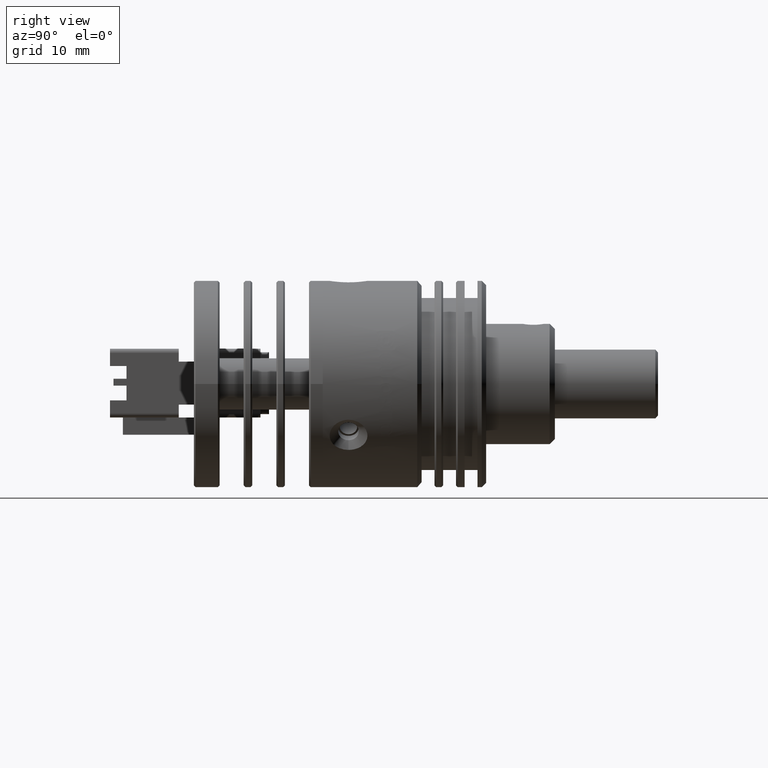
[diagram: clean part render]
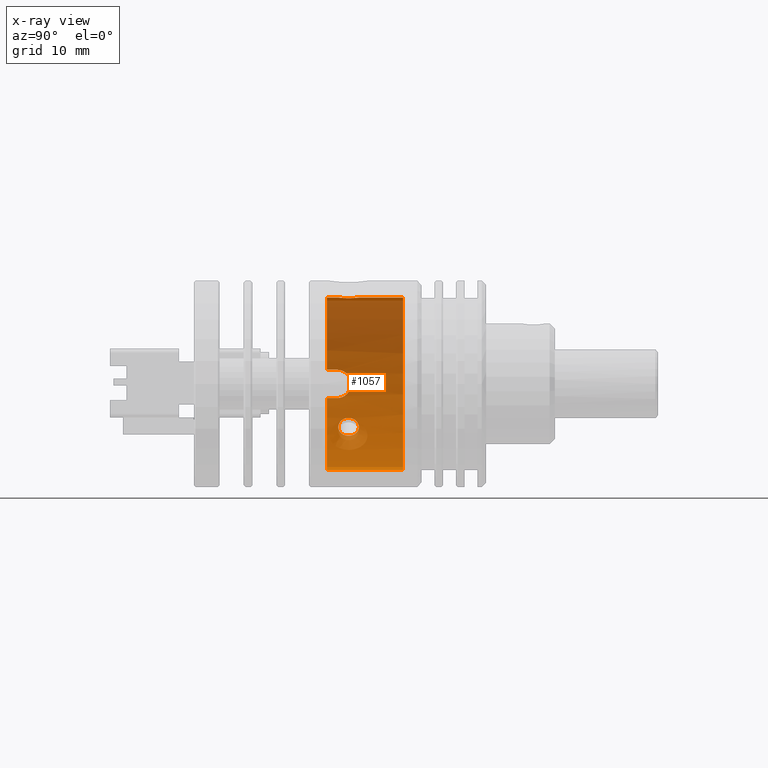
[diagram: x-ray — body ghosted, one internal face saturated and labeled with its STEP entity id]
A machine part, right view, then the same camera in x-ray: the body is ghosted and one INTERNAL B-rep face — a face not visible from any outside direction — is saturated and labeled: STEP entity #1057.
In plain terms, the highlighted cylindrical surface (partial cylindrical patch) has radius 10.05 mm, axis along (0, -1, 0).
Its self-contained STEP definition (entity closure, byte-faithful):
#458 = VERTEX_POINT ( 'NONE', #3569 ) ;
#525 = EDGE_CURVE ( 'NONE', #6832, #10182, #19097, .T. ) ;
#759 = CARTESIAN_POINT ( 'NONE',  ( -7.425286783052531092, -12.74281690102306364, -10.18517869290876199 ) ) ;
#890 = CARTESIAN_POINT ( 'NONE',  ( -6.605182745571224423, -12.10854479214479262, -13.26447686491780331 ) ) ;
#962 = VECTOR ( 'NONE', #18757, 1000.000000000000000 ) ;
#979 = CARTESIAN_POINT ( 'NONE',  ( -6.281811990332984763, -11.54559233490889980, -13.92610660918422383 ) ) ;
#1051 = CARTESIAN_POINT ( 'NONE',  ( -5.466398390838159926, -12.87431296392269786, -15.20225927523784293 ) ) ;
#1057 = ADVANCED_FACE ( 'NONE', ( #11739, #2728 ), #17819, .F. ) ;
#1170 = ORIENTED_EDGE ( 'NONE', *, *, #15794, .T. ) ;
#1308 = VERTEX_POINT ( 'NONE', #17994 ) ;
#2116 = CARTESIAN_POINT ( 'NONE',  ( 2.574933787635819815, -15.21493551001259803, -19.22403592165940012 ) ) ;
#2157 = CARTESIAN_POINT ( 'NONE',  ( 1.527976326826113729, -12.10724065561822904, 0.8214716023639646592 ) ) ;
#2176 = CARTESIAN_POINT ( 'NONE',  ( -5.969653563077124581, -11.54518954507262762, -14.46687969582933064 ) ) ;
#2182 = EDGE_CURVE ( 'NONE', #7286, #8348, #13064, .T. ) ;
#2235 = CARTESIAN_POINT ( 'NONE',  ( -5.557550248511866187, -13.32132622789586307, -15.07902957748575545 ) ) ;
#2299 = AXIS2_PLACEMENT_3D ( 'NONE', #2732, #11466, #14832 ) ;
#2336 = CARTESIAN_POINT ( 'NONE',  ( -6.666326740466710810, -12.87448124840656583, -13.12392248420391994 ) ) ;
#2416 = CARTESIAN_POINT ( 'NONE',  ( -7.466416769260704633, -12.46855052240196393, -8.743637897217418242 ) ) ;
#2425 = VERTEX_POINT ( 'NONE', #8534 ) ;
#2429 = CARTESIAN_POINT ( 'NONE',  ( -6.416513509468365406, -13.76310347751115870, -13.66603366377109374 ) ) ;
#2522 = CARTESIAN_POINT ( 'NONE',  ( -7.461396969375037713, -12.49981399956362971, -8.640687843899096166 ) ) ;
#2629 = CARTESIAN_POINT ( 'NONE',  ( -5.608889589834159750, -13.45115871491164938, -15.00843738706238284 ) ) ;
#2728 = FACE_OUTER_BOUND ( 'NONE', #8671, .T. ) ;
#2732 = CARTESIAN_POINT ( 'NONE',  ( 2.574933787635819815, -6.364935510012620590, -9.174035921659379866 ) ) ;
#2912 = VECTOR ( 'NONE', #7883, 1000.000000000000000 ) ;
#2953 = ORIENTED_EDGE ( 'NONE', *, *, #3927, .T. ) ;
#3207 = ORIENTED_EDGE ( 'NONE', *, *, #2182, .F. ) ;
#3435 = CARTESIAN_POINT ( 'NONE',  ( -5.466355178716340468, -12.71493551001259981, -15.20231691706954891 ) ) ;
#3569 = CARTESIAN_POINT ( 'NONE',  ( 2.574933787635819815, -11.51493551001259874, 0.8759640783406169584 ) ) ;
#3580 = CARTESIAN_POINT ( 'NONE',  ( -6.666355178716349528, -12.71493551001259981, -13.12385594798688082 ) ) ;
#3798 = CARTESIAN_POINT ( 'NONE',  ( -7.389098305028412916, -13.05223412461693044, -10.49497710983755105 ) ) ;
#3909 = CARTESIAN_POINT ( 'NONE',  ( -7.467966182994669744, -12.45662949297319777, -9.602617674327783348 ) ) ;
#3910 = EDGE_CURVE ( 'NONE', #18547, #19341, #10038, .T. ) ;
#3912 = B_SPLINE_CURVE_WITH_KNOTS ( 'NONE', 3,
 ( #17780, #10798, #16875, #16296, #8728, #14796, #2157, #18553, #4858, #16972 ),
 .UNSPECIFIED., .F., .F.,
 ( 4, 2, 2, 2, 4 ),
 ( 0.000000000000000000, 0.2500000000000000000, 0.5000000000000000000, 0.7500000000000000000, 1.000000000000000000 ),
 .UNSPECIFIED. ) ;
#3921 = CARTESIAN_POINT ( 'NONE',  ( -6.048636828495006057, -13.91481347837946458, -14.33754590958296760 ) ) ;
#3927 = EDGE_CURVE ( 'NONE', #2425, #9275, #11640, .T. ) ;
#4081 = DIRECTION ( 'NONE',  ( 0.000000000000000000, -1.000000000000000000, 0.000000000000000000 ) ) ;
#4110 = CARTESIAN_POINT ( 'NONE',  ( 2.261848505659862063, -13.88431853618256362, 0.8721691774103297323 ) ) ;
#4364 = LINE ( 'NONE', #16377, #10306 ) ;
#4655 = VERTEX_POINT ( 'NONE', #17878 ) ;
#4710 = B_SPLINE_CURVE_WITH_KNOTS ( 'NONE', 3,
 ( #17729, #5706, #13435, #19326, #11746, #8972, #8857, #4110, #16233, #5908 ),
 .UNSPECIFIED., .F., .F.,
 ( 4, 2, 2, 2, 4 ),
 ( 0.000000000000000000, 0.2500000000000000000, 0.5000000000000000000, 0.7500000000000000000, 1.000000000000000000 ),
 .UNSPECIFIED. ) ;
#4858 = CARTESIAN_POINT ( 'NONE',  ( 1.375006981964988606, -12.55523209002796392, 0.8040739026744592177 ) ) ;
#5266 = CARTESIAN_POINT ( 'NONE',  ( -5.557782866621506557, -12.10776854581456163, -15.07871173669352238 ) ) ;
#5291 = EDGE_CURVE ( 'NONE', #10182, #6832, #15957, .T. ) ;
#5320 = CARTESIAN_POINT ( 'NONE',  ( -7.442611803284549410, -12.62346510831863000, -8.342855268297718396 ) ) ;
#5342 = CARTESIAN_POINT ( 'NONE',  ( 2.574933787635819815, -38.96480397725189704, 0.8759640783406169584 ) ) ;
#5371 = ORIENTED_EDGE ( 'NONE', *, *, #5291, .T. ) ;
#5418 = CARTESIAN_POINT ( 'NONE',  ( -5.485020215712262726, -13.02788413154433300, -15.17765051100969487 ) ) ;
#5503 = CARTESIAN_POINT ( 'NONE',  ( -7.475093677698872341, -12.41476160209161428, -9.391592357068121899 ) ) ;
#5540 = ORIENTED_EDGE ( 'NONE', *, *, #3910, .T. ) ;
#5548 = CARTESIAN_POINT ( 'NONE',  ( -6.473884906357190161, -11.75406983803124739, -13.54828851797303635 ) ) ;
#5646 = EDGE_CURVE ( 'NONE', #8348, #9275, #9545, .T. ) ;
#5706 = CARTESIAN_POINT ( 'NONE',  ( 1.375005290904664612, -12.87423845768973329, 0.8040736993018551271 ) ) ;
#5766 = CARTESIAN_POINT ( 'NONE',  ( 2.574933787635819815, -15.21493551001259803, -9.174035921659379866 ) ) ;
#5908 = CARTESIAN_POINT ( 'NONE',  ( 2.574933787635819815, -13.91493551001259910, 0.8759640783406169584 ) ) ;
#5985 = CARTESIAN_POINT ( 'NONE',  ( 2.574933787635819815, -15.21493551001259803, 0.8759640783406190678 ) ) ;
#6082 = VECTOR ( 'NONE', #14458, 1000.000000000000000 ) ;
#6227 = VERTEX_POINT ( 'NONE', #13962 ) ;
#6751 = CARTESIAN_POINT ( 'NONE',  ( -5.810974019337692198, -11.66676754251176185, -14.71485882666852341 ) ) ;
#6804 = CARTESIAN_POINT ( 'NONE',  ( -7.424861081567651233, -12.74635370040716253, -8.159161231765914124 ) ) ;
#6815 = CARTESIAN_POINT ( 'NONE',  ( -6.281097054405206492, -13.88468147495482796, -13.92744374516422923 ) ) ;
#6832 = VERTEX_POINT ( 'NONE', #3580 ) ;
#6871 = DIRECTION ( 'NONE',  ( 0.000000000000000000, 0.000000000000000000, -1.000000000000000000 ) ) ;
#6988 = CARTESIAN_POINT ( 'NONE',  ( -7.338705050748014713, -13.84583442746706439, -7.524107139166001268 ) ) ;
#7029 = CARTESIAN_POINT ( 'NONE',  ( -6.208582342659136444, -11.51505754165709305, -14.06051215260796994 ) ) ;
#7089 = CARTESIAN_POINT ( 'NONE',  ( -7.371778100653277654, -13.22951630382200250, -10.61371233772075584 ) ) ;
#7103 = CARTESIAN_POINT ( 'NONE',  ( -5.737689430355407794, -13.67580118201244765, -14.82341648671552647 ) ) ;
#7269 = ORIENTED_EDGE ( 'NONE', *, *, #11682, .T. ) ;
#7286 = VERTEX_POINT ( 'NONE', #11718 ) ;
#7496 = DIRECTION ( 'NONE',  ( 0.000000000000000000, -1.000000000000000000, 0.000000000000000000 ) ) ;
#7883 = DIRECTION ( 'NONE',  ( 0.000000000000000000, 1.000000000000000000, 0.000000000000000000 ) ) ;
#7954 = CARTESIAN_POINT ( 'NONE',  ( 2.574933787635819815, -38.96480397725189704, -19.22403592165940012 ) ) ;
#8262 = CARTESIAN_POINT ( 'NONE',  ( -7.473307146108549404, -12.42576191623342829, -8.957662163190937221 ) ) ;
#8271 = CARTESIAN_POINT ( 'NONE',  ( -5.968853037347136237, -13.88427868512773067, -14.46816741644312820 ) ) ;
#8348 = VERTEX_POINT ( 'NONE', #18564 ) ;
#8362 = CARTESIAN_POINT ( 'NONE',  ( -7.338705179698017389, -13.84561235177818972, -10.82396392938774099 ) ) ;
#8472 = CARTESIAN_POINT ( 'NONE',  ( -6.666355178716349528, -12.71493551001259981, -13.12385594798688082 ) ) ;
#8534 = CARTESIAN_POINT ( 'NONE',  ( -7.338693197479170038, -15.21493551001259803, -10.82403592165940154 ) ) ;
#8671 = EDGE_LOOP ( 'NONE', ( #3207, #7269, #16932, #12172, #1170, #5540, #10491, #16940, #11899, #2953, #15642 ) ) ;
#8728 = CARTESIAN_POINT ( 'NONE',  ( 1.839098913070697172, -11.75379837353880852, 0.8496247737512517828 ) ) ;
#8857 = CARTESIAN_POINT ( 'NONE',  ( 1.967137709614269481, -13.76185064086243415, 0.8586528113725494515 ) ) ;
#8972 = CARTESIAN_POINT ( 'NONE',  ( 1.838343011819126405, -13.67548592738402746, 0.8495671586658879448 ) ) ;
#8993 = EDGE_CURVE ( 'NONE', #1308, #19341, #4364, .T. ) ;
#9275 = VERTEX_POINT ( 'NONE', #2116 ) ;
#9545 = LINE ( 'NONE', #7954, #13710 ) ;
#9847 = CARTESIAN_POINT ( 'NONE',  ( -7.345965486357530771, -13.63466387889319442, -10.78198591058104405 ) ) ;
#9961 = CARTESIAN_POINT ( 'NONE',  ( -5.810310813535115138, -13.76238282472546182, -14.71585823686827332 ) ) ;
#10038 = CIRCLE ( 'NONE', #19597, 10.05000000000000249 ) ;
#10182 = VERTEX_POINT ( 'NONE', #3435 ) ;
#10306 = VECTOR ( 'NONE', #14972, 1000.000000000000000 ) ;
#10310 = B_SPLINE_CURVE_WITH_KNOTS ( 'NONE', 3,
 ( #19013, #6988, #12931, #13022, #15830, #18914, #19114, #6804, #5320, #2522, #2416, #8262, #14334, #5503, #3909, #11360, #759, #3798, #7089, #9847, #8362, #14434 ),
 .UNSPECIFIED., .F., .F.,
 ( 4, 2, 2, 2, 2, 2, 2, 2, 2, 2, 4 ),
 ( 0.000000000000000000, 0.1250000000000003608, 0.1875000000000005551, 0.2500000000000009992, 0.3750000000000012212, 0.4375000000000014988, 0.5000000000000017764, 0.6250000000000013323, 0.7500000000000008882, 0.8750000000000005551, 1.000000000000000000 ),
 .UNSPECIFIED. ) ;
#10491 = ORIENTED_EDGE ( 'NONE', *, *, #8993, .F. ) ;
#10798 = CARTESIAN_POINT ( 'NONE',  ( 2.415773213184010615, -11.51493551001259874, 0.8759640783406200670 ) ) ;
#11268 = CARTESIAN_POINT ( 'NONE',  ( -6.654364948194382734, -13.02782378905290095, -13.15226687321558430 ) ) ;
#11298 = CARTESIAN_POINT ( 'NONE',  ( -6.049528912664002611, -11.51481410662589511, -14.33605574900548874 ) ) ;
#11360 = CARTESIAN_POINT ( 'NONE',  ( -7.442544115101440205, -12.62385463419919951, -10.00689761905032071 ) ) ;
#11466 = DIRECTION ( 'NONE',  ( 0.000000000000000000, -1.000000000000000000, 0.000000000000000000 ) ) ;
#11640 = CIRCLE ( 'NONE', #15780, 10.05000000000000249 ) ;
#11682 = EDGE_CURVE ( 'NONE', #7286, #458, #18957, .T. ) ;
#11706 = AXIS2_PLACEMENT_3D ( 'NONE', #18517, #7496, #12340 ) ;
#11718 = CARTESIAN_POINT ( 'NONE',  ( 2.574933787635819815, -6.364935510012620590, 0.8759640783406169584 ) ) ;
#11739 = FACE_BOUND ( 'NONE', #13154, .T. ) ;
#11746 = CARTESIAN_POINT ( 'NONE',  ( 1.613895257319870602, -13.45086814264776365, 0.8305425115467187647 ) ) ;
#11899 = ORIENTED_EDGE ( 'NONE', *, *, #16091, .F. ) ;
#12172 = ORIENTED_EDGE ( 'NONE', *, *, #16586, .T. ) ;
#12340 = DIRECTION ( 'NONE',  ( 0.000000000000000000, 0.000000000000000000, -1.000000000000000000 ) ) ;
#12452 = CARTESIAN_POINT ( 'NONE',  ( -7.338693197479170038, -38.96480397725189704, -10.82403592165940154 ) ) ;
#12931 = CARTESIAN_POINT ( 'NONE',  ( -7.346013783709611111, -13.63409778600884970, -7.566412387108016446 ) ) ;
#12940 = CARTESIAN_POINT ( 'NONE',  ( -6.569635527706031652, -13.45152494115296804, -13.34442357506524779 ) ) ;
#12971 = CARTESIAN_POINT ( 'NONE',  ( -6.417047421160604337, -11.66748819528829983, -13.66495960565281287 ) ) ;
#13022 = CARTESIAN_POINT ( 'NONE',  ( -7.365253316404940520, -13.33183186293164724, -7.691818369402349198 ) ) ;
#13064 = CIRCLE ( 'NONE', #2299, 10.05000000000000249 ) ;
#13073 = CARTESIAN_POINT ( 'NONE',  ( -5.484964646608102790, -12.40204723033262901, -15.17772761000879989 ) ) ;
#13131 = CARTESIAN_POINT ( 'NONE',  ( -5.466355178716340468, -12.71493551001259981, -15.20231691706954891 ) ) ;
#13154 = EDGE_LOOP ( 'NONE', ( #19218, #5371 ) ) ;
#13162 = CARTESIAN_POINT ( 'NONE',  ( -5.466398581807433210, -12.55538977097896414, -15.20225902049870825 ) ) ;
#13435 = CARTESIAN_POINT ( 'NONE',  ( 1.405600130529706115, -13.02774239983040516, 0.8078926875969650867 ) ) ;
#13710 = VECTOR ( 'NONE', #15523, 1000.000000000000000 ) ;
#13962 = CARTESIAN_POINT ( 'NONE',  ( 2.574933787635819815, -13.91493551001259910, 0.8759640783406169584 ) ) ;
#14276 = CARTESIAN_POINT ( 'NONE',  ( -6.654325962944757755, -12.40198688846540165, -13.15235354722167216 ) ) ;
#14334 = CARTESIAN_POINT ( 'NONE',  ( -7.475052360261862816, -12.41502319144076338, -9.063360083252641530 ) ) ;
#14410 = DIRECTION ( 'NONE',  ( 0.000000000000000000, 0.000000000000000000, -1.000000000000000000 ) ) ;
#14434 = CARTESIAN_POINT ( 'NONE',  ( -7.338693197479170038, -14.06493551001259945, -10.82403592165940154 ) ) ;
#14458 = DIRECTION ( 'NONE',  ( 0.000000000000000000, -1.000000000000000000, 0.000000000000000000 ) ) ;
#14574 = CARTESIAN_POINT ( 'NONE',  ( -6.569717786002619242, -11.97871230509504237, -13.34423413395890812 ) ) ;
#14796 = CARTESIAN_POINT ( 'NONE',  ( 1.614278654728009021, -11.97845029315088183, 0.8305814330905803011 ) ) ;
#14832 = DIRECTION ( 'NONE',  ( 0.000000000000000000, 0.000000000000000000, -1.000000000000000000 ) ) ;
#14972 = DIRECTION ( 'NONE',  ( 0.000000000000000000, -1.000000000000000000, 0.000000000000000000 ) ) ;
#15523 = DIRECTION ( 'NONE',  ( 0.000000000000000000, -1.000000000000000000, 0.000000000000000000 ) ) ;
#15596 = CARTESIAN_POINT ( 'NONE',  ( 1.374933787635821858, -12.71493551001259981, 0.8040651000781710023 ) ) ;
#15642 = ORIENTED_EDGE ( 'NONE', *, *, #5646, .F. ) ;
#15777 = CARTESIAN_POINT ( 'NONE',  ( -6.666326865486206010, -12.55555805609369457, -13.12392219169912799 ) ) ;
#15780 = AXIS2_PLACEMENT_3D ( 'NONE', #5766, #17892, #14410 ) ;
#15794 = EDGE_CURVE ( 'NONE', #6227, #18547, #16243, .T. ) ;
#15830 = CARTESIAN_POINT ( 'NONE',  ( -7.372764499710442010, -13.23692114498381933, -7.742459744124758458 ) ) ;
#15957 = B_SPLINE_CURVE_WITH_KNOTS ( 'NONE', 3,
 ( #13131, #1051, #5418, #2235, #2629, #7103, #9961, #8271, #3921, #16045, #6815, #2429, #17726, #12940, #17635, #11268, #2336, #8472 ),
 .UNSPECIFIED., .F., .F.,
 ( 4, 2, 2, 2, 2, 2, 2, 2, 4 ),
 ( 0.000000000000000000, 0.1250000000000000000, 0.2500000000000000000, 0.3750000000000000000, 0.5000000000000000000, 0.6250000000000000000, 0.7500000000000000000, 0.8750000000000000000, 1.000000000000000000 ),
 .UNSPECIFIED. ) ;
#16045 = CARTESIAN_POINT ( 'NONE',  ( -6.207737867841625068, -13.91505691338793227, -14.06202980042546358 ) ) ;
#16091 = EDGE_CURVE ( 'NONE', #2425, #4655, #17033, .T. ) ;
#16233 = CARTESIAN_POINT ( 'NONE',  ( 2.415376139451706816, -13.91493551001259377, 0.8759640783406200670 ) ) ;
#16243 = LINE ( 'NONE', #5342, #6082 ) ;
#16279 = VERTEX_POINT ( 'NONE', #15596 ) ;
#16296 = CARTESIAN_POINT ( 'NONE',  ( 1.968683473140750317, -11.66721420379034768, 0.8587378438556584337 ) ) ;
#16377 = CARTESIAN_POINT ( 'NONE',  ( -7.338693197479170038, -38.96480397725189704, -7.524035921659380399 ) ) ;
#16586 = EDGE_CURVE ( 'NONE', #16279, #6227, #4710, .T. ) ;
#16875 = CARTESIAN_POINT ( 'NONE',  ( 2.262239252361293751, -11.54555502265795219, 0.8721728658107283927 ) ) ;
#16932 = ORIENTED_EDGE ( 'NONE', *, *, #17911, .T. ) ;
#16940 = ORIENTED_EDGE ( 'NONE', *, *, #18450, .T. ) ;
#16972 = CARTESIAN_POINT ( 'NONE',  ( 1.374933787635821858, -12.71493551001259981, 0.8040651000781710023 ) ) ;
#17033 = LINE ( 'NONE', #12452, #2912 ) ;
#17284 = CARTESIAN_POINT ( 'NONE',  ( 2.574933787635819815, -38.96480397725189704, 0.8759640783406169584 ) ) ;
#17287 = CARTESIAN_POINT ( 'NONE',  ( -5.609012521518079275, -11.97834607884744429, -15.00827142870366693 ) ) ;
#17635 = CARTESIAN_POINT ( 'NONE',  ( -6.605023796315740547, -13.32210247485029164, -13.26483723875691645 ) ) ;
#17649 = CARTESIAN_POINT ( 'NONE',  ( -7.338693197479170038, -15.21493551001259803, -7.524035921659380399 ) ) ;
#17666 = CARTESIAN_POINT ( 'NONE',  ( -5.466355178716340468, -12.71493551001259981, -15.20231691706954891 ) ) ;
#17701 = CARTESIAN_POINT ( 'NONE',  ( 2.574933787635819815, -15.21493551001259803, -9.174035921659379866 ) ) ;
#17726 = CARTESIAN_POINT ( 'NONE',  ( -6.473506900255093122, -13.67651303152263154, -13.54907903693173843 ) ) ;
#17729 = CARTESIAN_POINT ( 'NONE',  ( 1.374933787635821858, -12.71493551001259981, 0.8040651000781710023 ) ) ;
#17780 = CARTESIAN_POINT ( 'NONE',  ( 2.574933787635819815, -11.51493551001259874, 0.8759640783406169584 ) ) ;
#17819 = CYLINDRICAL_SURFACE ( 'NONE', #11706, 10.05000000000000249 ) ;
#17878 = CARTESIAN_POINT ( 'NONE',  ( -7.338693197479170038, -14.06493551001259945, -10.82403592165940154 ) ) ;
#17892 = DIRECTION ( 'NONE',  ( 0.000000000000000000, -1.000000000000000000, 0.000000000000000000 ) ) ;
#17911 = EDGE_CURVE ( 'NONE', #458, #16279, #3912, .T. ) ;
#17994 = CARTESIAN_POINT ( 'NONE',  ( -7.338693197479170038, -14.06493551001259945, -7.524035921659380399 ) ) ;
#18450 = EDGE_CURVE ( 'NONE', #1308, #4655, #10310, .T. ) ;
#18517 = CARTESIAN_POINT ( 'NONE',  ( 2.574933787635819815, -38.96480397725189704, -9.174035921659379866 ) ) ;
#18547 = VERTEX_POINT ( 'NONE', #5985 ) ;
#18553 = CARTESIAN_POINT ( 'NONE',  ( 1.405591665940631785, -12.40175243515216508, 0.8078942318721400451 ) ) ;
#18564 = CARTESIAN_POINT ( 'NONE',  ( 2.574933787635819815, -6.364935510012620590, -19.22403592165940012 ) ) ;
#18757 = DIRECTION ( 'NONE',  ( 0.000000000000000000, -1.000000000000000000, 0.000000000000000000 ) ) ;
#18863 = CARTESIAN_POINT ( 'NONE',  ( -5.738185036783045589, -11.75335798852744240, -14.82269386438017555 ) ) ;
#18914 = CARTESIAN_POINT ( 'NONE',  ( -7.389173397702501589, -13.05878888857729692, -7.861527038929224886 ) ) ;
#18957 = LINE ( 'NONE', #17284, #962 ) ;
#19013 = CARTESIAN_POINT ( 'NONE',  ( -7.338693197479170038, -14.06493551001259945, -7.524035921659380399 ) ) ;
#19097 = B_SPLINE_CURVE_WITH_KNOTS ( 'NONE', 3,
 ( #19159, #15777, #14276, #890, #14574, #5548, #12971, #979, #7029, #11298, #2176, #6751, #18863, #17287, #5266, #13073, #13162, #17666 ),
 .UNSPECIFIED., .F., .F.,
 ( 4, 2, 2, 2, 2, 2, 2, 2, 4 ),
 ( 0.000000000000000000, 0.1250000000000000000, 0.2500000000000000000, 0.3750000000000000000, 0.5000000000000000000, 0.6250000000000000000, 0.7500000000000000000, 0.8750000000000000000, 1.000000000000000000 ),
 .UNSPECIFIED. ) ;
#19114 = CARTESIAN_POINT ( 'NONE',  ( -7.398241669925806896, -12.97410875190316659, -7.931412363105117436 ) ) ;
#19159 = CARTESIAN_POINT ( 'NONE',  ( -6.666355178716349528, -12.71493551001259981, -13.12385594798688082 ) ) ;
#19218 = ORIENTED_EDGE ( 'NONE', *, *, #525, .T. ) ;
#19326 = CARTESIAN_POINT ( 'NONE',  ( 1.527164240581697641, -13.32107006669859572, 0.8213839763837964547 ) ) ;
#19341 = VERTEX_POINT ( 'NONE', #17649 ) ;
#19597 = AXIS2_PLACEMENT_3D ( 'NONE', #17701, #4081, #6871 ) ;